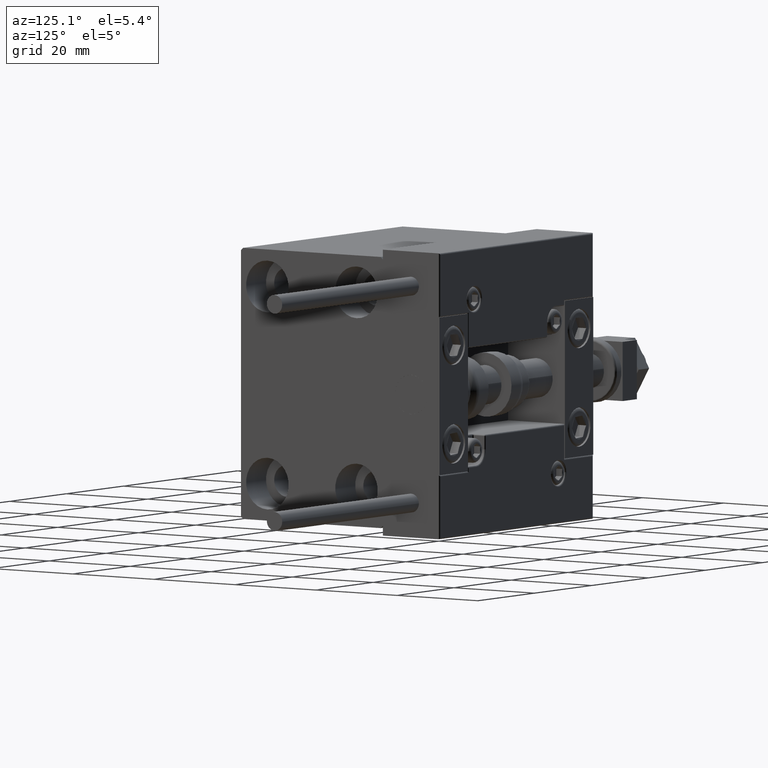
[diagram: clean part render]
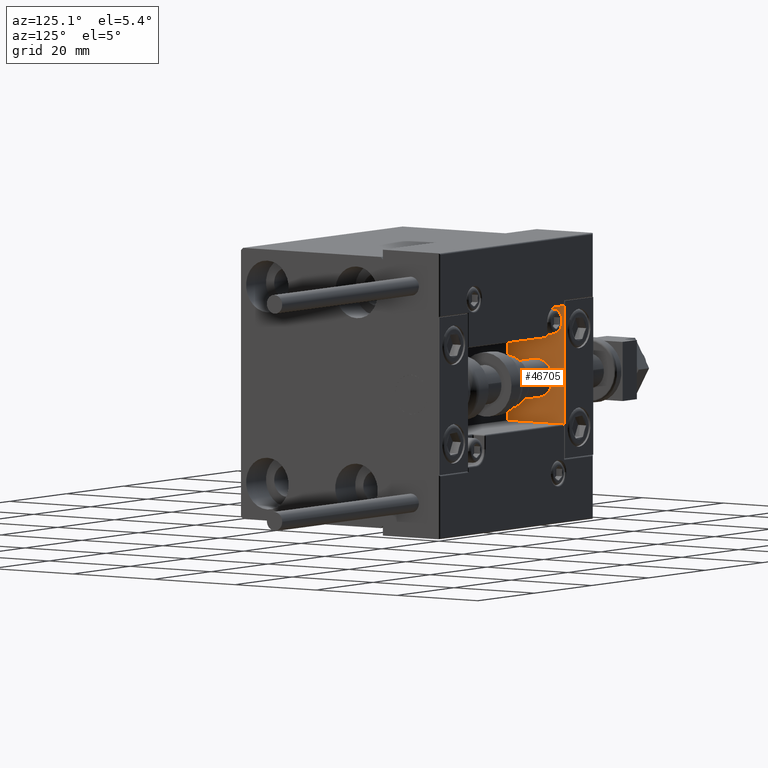
[diagram: same view with one face highlighted and labeled with its STEP entity id]
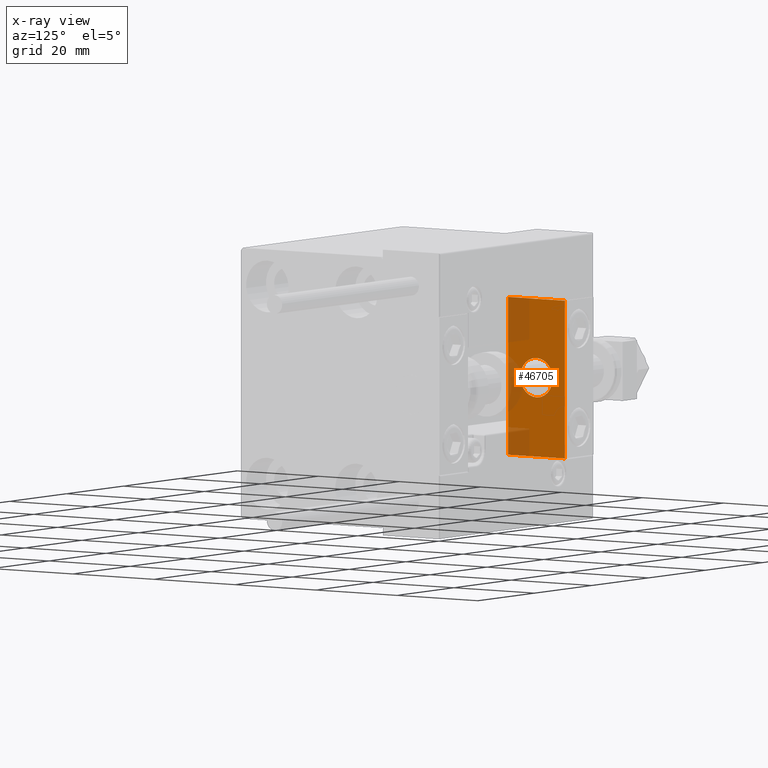
[diagram: x-ray of the same camera — body ghosted, the highlighted face saturated]
A machine part, auxiliary view. The second image highlights one B-rep face of the part: STEP entity #46705.
The next image is the same camera in x-ray: the body ghosted, the highlighted face saturated — about 26% of this face is hidden behind the body in this view.
In plain terms, the highlighted planar face has unit normal (1, 0, -0).
Its self-contained STEP definition (entity closure, byte-faithful):
#631 = LINE ( 'NONE', #38596, #26015 ) ;
#1577 = DIRECTION ( 'NONE',  ( 0.000000000000000000, -1.000000000000000000, 0.000000000000000000 ) ) ;
#1627 = AXIS2_PLACEMENT_3D ( 'NONE', #7819, #42445, #15970 ) ;
#1809 = LINE ( 'NONE', #5895, #10365 ) ;
#1990 = VERTEX_POINT ( 'NONE', #35215 ) ;
#2172 = DIRECTION ( 'NONE',  ( 0.000000000000000000, 0.000000000000000000, 1.000000000000000000 ) ) ;
#3321 = EDGE_CURVE ( 'NONE', #36137, #13357, #20954, .T. ) ;
#4851 = EDGE_LOOP ( 'NONE', ( #7225, #38282, #43645, #31055 ) ) ;
#5124 = AXIS2_PLACEMENT_3D ( 'NONE', #5250, #47774, #2172 ) ;
#5250 = CARTESIAN_POINT ( 'NONE',  ( 0.000000000000000000, 0.000000000000000000, 0.000000000000000000 ) ) ;
#5895 = CARTESIAN_POINT ( 'NONE',  ( 0.000000000000000000, 7.000000000000000000, 15.99999999999999289 ) ) ;
#7225 = ORIENTED_EDGE ( 'NONE', *, *, #41617, .F. ) ;
#7545 = EDGE_CURVE ( 'NONE', #45838, #21953, #27092, .T. ) ;
#7819 = CARTESIAN_POINT ( 'NONE',  ( 0.000000000000000000, 0.000000000000000000, 0.000000000000000000 ) ) ;
#8109 = FACE_BOUND ( 'NONE', #37077, .T. ) ;
#8770 = CARTESIAN_POINT ( 'NONE',  ( 0.000000000000000000, 7.000000000000000000, -16.00000000000000711 ) ) ;
#9559 = CARTESIAN_POINT ( 'NONE',  ( 0.000000000000000000, 0.000000000000000000, 4.000000000000000000 ) ) ;
#10027 = CARTESIAN_POINT ( 'NONE',  ( 0.000000000000000000, 4.898587196589412829E-16, -4.000000000000000000 ) ) ;
#10365 = VECTOR ( 'NONE', #25768, 1000.000000000000000 ) ;
#13357 = VERTEX_POINT ( 'NONE', #38426 ) ;
#15746 = DIRECTION ( 'NONE',  ( -0.000000000000000000, 0.000000000000000000, 1.000000000000000000 ) ) ;
#15958 = ORIENTED_EDGE ( 'NONE', *, *, #31482, .F. ) ;
#15970 = DIRECTION ( 'NONE',  ( 0.000000000000000000, 0.000000000000000000, 1.000000000000000000 ) ) ;
#19004 = AXIS2_PLACEMENT_3D ( 'NONE', #34836, #31269, #15746 ) ;
#19316 = FACE_OUTER_BOUND ( 'NONE', #4851, .T. ) ;
#19745 = DIRECTION ( 'NONE',  ( 0.000000000000000000, -1.000000000000000000, 0.000000000000000000 ) ) ;
#20083 = EDGE_CURVE ( 'NONE', #1990, #36137, #1809, .T. ) ;
#20954 = LINE ( 'NONE', #8770, #39332 ) ;
#21953 = VERTEX_POINT ( 'NONE', #9559 ) ;
#22882 = VERTEX_POINT ( 'NONE', #35377 ) ;
#25768 = DIRECTION ( 'NONE',  ( 0.000000000000000000, 0.000000000000000000, -1.000000000000000000 ) ) ;
#26015 = VECTOR ( 'NONE', #19745, 1000.000000000000000 ) ;
#26948 = PLANE ( 'NONE',  #19004 ) ;
#27092 = CIRCLE ( 'NONE', #5124, 4.000000000000000000 ) ;
#27692 = DIRECTION ( 'NONE',  ( 0.000000000000000000, 0.000000000000000000, -1.000000000000000000 ) ) ;
#30759 = EDGE_CURVE ( 'NONE', #1990, #22882, #631, .T. ) ;
#31055 = ORIENTED_EDGE ( 'NONE', *, *, #3321, .T. ) ;
#31269 = DIRECTION ( 'NONE',  ( -1.000000000000000000, 0.000000000000000000, -0.000000000000000000 ) ) ;
#31482 = EDGE_CURVE ( 'NONE', #21953, #45838, #45566, .T. ) ;
#31832 = VECTOR ( 'NONE', #27692, 1000.000000000000000 ) ;
#34836 = CARTESIAN_POINT ( 'NONE',  ( 0.000000000000000000, 0.000000000000000000, 0.000000000000000000 ) ) ;
#35215 = CARTESIAN_POINT ( 'NONE',  ( 0.000000000000000000, 7.000000000000000000, 15.99999999999999289 ) ) ;
#35377 = CARTESIAN_POINT ( 'NONE',  ( 0.000000000000000000, -7.000000000000000000, 15.99999999999999289 ) ) ;
#35589 = ORIENTED_EDGE ( 'NONE', *, *, #7545, .F. ) ;
#36137 = VERTEX_POINT ( 'NONE', #44043 ) ;
#36556 = CARTESIAN_POINT ( 'NONE',  ( 0.000000000000000000, -7.000000000000000000, 15.99999999999999289 ) ) ;
#37077 = EDGE_LOOP ( 'NONE', ( #15958, #35589 ) ) ;
#38282 = ORIENTED_EDGE ( 'NONE', *, *, #30759, .F. ) ;
#38426 = CARTESIAN_POINT ( 'NONE',  ( 0.000000000000000000, -7.000000000000000000, -16.00000000000000711 ) ) ;
#38596 = CARTESIAN_POINT ( 'NONE',  ( 0.000000000000000000, 7.000000000000000000, 15.99999999999999289 ) ) ;
#39332 = VECTOR ( 'NONE', #1577, 1000.000000000000000 ) ;
#39660 = LINE ( 'NONE', #36556, #31832 ) ;
#41617 = EDGE_CURVE ( 'NONE', #22882, #13357, #39660, .T. ) ;
#42445 = DIRECTION ( 'NONE',  ( -1.000000000000000000, -0.000000000000000000, -0.000000000000000000 ) ) ;
#43645 = ORIENTED_EDGE ( 'NONE', *, *, #20083, .T. ) ;
#44043 = CARTESIAN_POINT ( 'NONE',  ( 0.000000000000000000, 7.000000000000000000, -16.00000000000000711 ) ) ;
#45566 = CIRCLE ( 'NONE', #1627, 4.000000000000000000 ) ;
#45838 = VERTEX_POINT ( 'NONE', #10027 ) ;
#46705 = ADVANCED_FACE ( 'NONE', ( #8109, #19316 ), #26948, .T. ) ;
#47774 = DIRECTION ( 'NONE',  ( -1.000000000000000000, -0.000000000000000000, -0.000000000000000000 ) ) ;